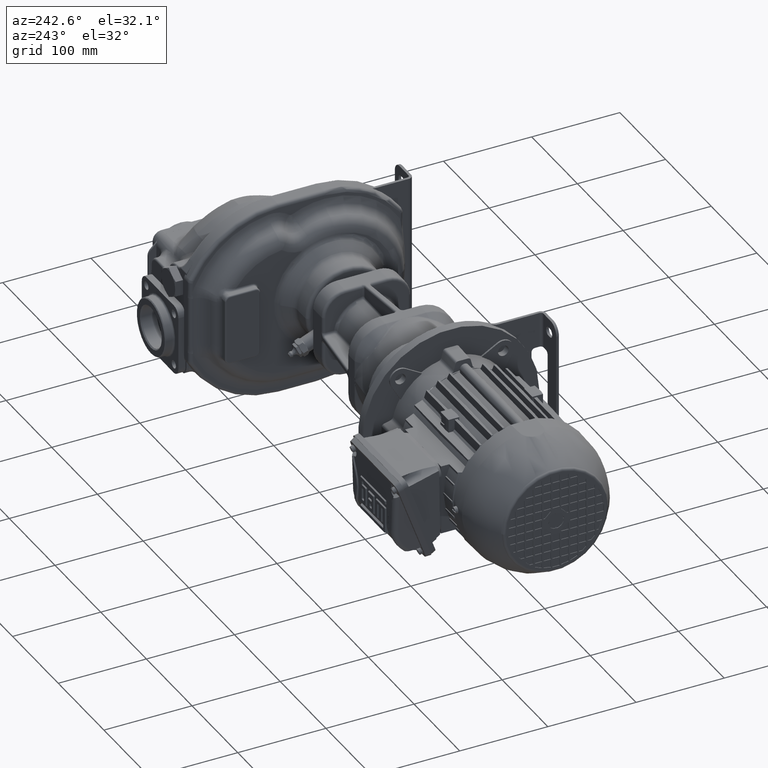
[diagram: clean part render]
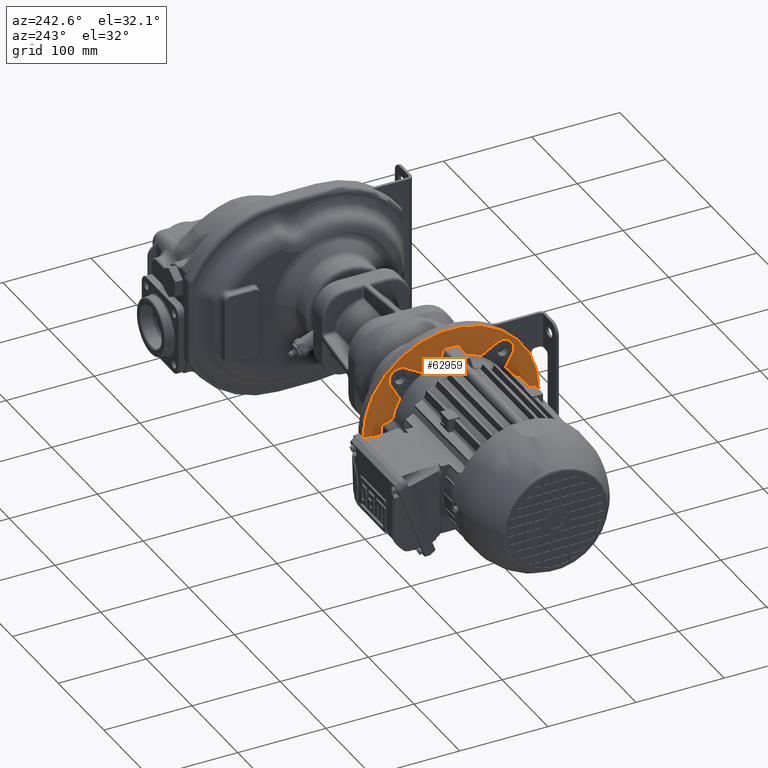
[diagram: same view with one face highlighted and labeled with its STEP entity id]
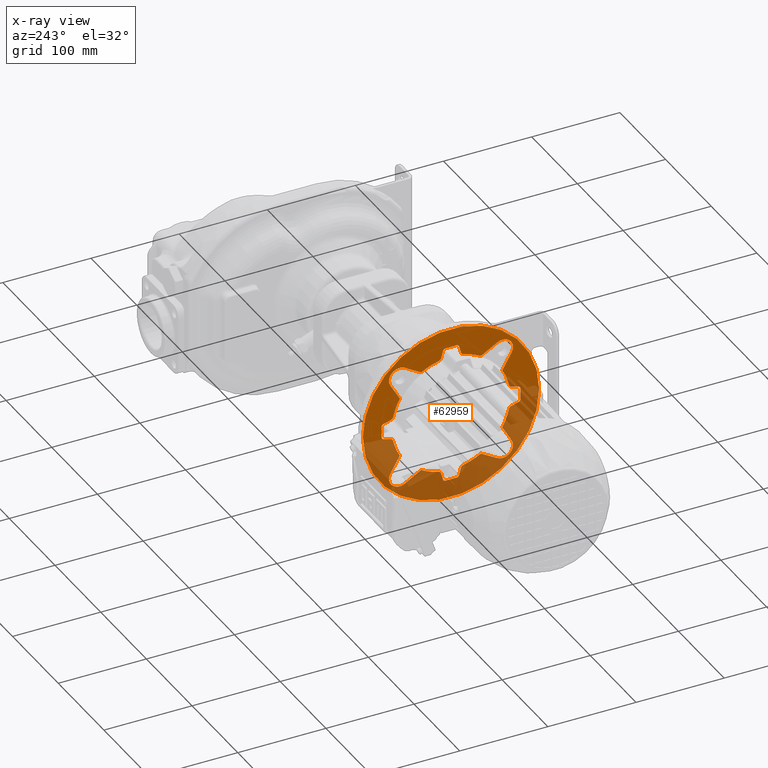
[diagram: x-ray of the same camera — body ghosted, the highlighted face saturated]
A machine part, auxiliary view. The second image highlights one B-rep face of the part: STEP entity #62959.
The next image is the same camera in x-ray: the body ghosted, the highlighted face saturated — about 51% of this face is hidden behind the body in this view.
In plain terms, the highlighted planar face has unit normal (1, 0, 0).
Its self-contained STEP definition (entity closure, byte-faithful):
#13460=CARTESIAN_POINT('',(-3.143E2,1.1E2,0.E0));
#13461=DIRECTION('',(-1.E0,0.E0,0.E0));
#13462=DIRECTION('',(0.E0,1.E0,0.E0));
#13463=AXIS2_PLACEMENT_3D('',#13460,#13461,#13462);
#13465=CARTESIAN_POINT('',(-3.143E2,1.1E2,0.E0));
#13466=DIRECTION('',(-1.E0,0.E0,0.E0));
#13467=DIRECTION('',(0.E0,-1.E0,0.E0));
#13468=AXIS2_PLACEMENT_3D('',#13465,#13466,#13467);
#13470=DIRECTION('',(-4.968751014214E-7,2.588375251491E-1,9.659208743859E-1));
#13471=VECTOR('',#13470,8.172830979736E0);
#13472=CARTESIAN_POINT('',(-3.143E2,1.191280612050E2,-7.647114600950E1));
#13473=LINE('',#13472,#13471);
#13474=DIRECTION('',(0.E0,1.E0,0.E0));
#13475=VECTOR('',#13474,1.246255344412E1);
#13476=CARTESIAN_POINT('',(-3.143E2,1.037687232779E2,-7.869392692158E1));
#13477=LINE('',#13476,#13475);
#13478=DIRECTION('',(4.968392405711E-7,2.588375258119E-1,-9.659208742083E-1));
#13479=VECTOR('',#13478,8.172830979737E0);
#13480=CARTESIAN_POINT('',(-3.143000040606E2,9.875650344536E1,
-6.857683796479E1));
#13481=LINE('',#13480,#13479);
#13482=CARTESIAN_POINT('',(-3.143E2,1.1E2,0.E0));
#13483=DIRECTION('',(1.E0,0.E0,0.E0));
#13484=DIRECTION('',(0.E0,-5.039168477127E-1,-8.637521696594E-1));
#13485=AXIS2_PLACEMENT_3D('',#13482,#13483,#13484);
#13487=DIRECTION('',(-3.467432539896E-14,8.660254037844E-1,5.E-1));
#13488=VECTOR('',#13487,2.131157381400E1);
#13489=CARTESIAN_POINT('',(-3.143E2,5.766369055211E1,-6.872861429330E1));
#13490=LINE('',#13489,#13488);
#13491=DIRECTION('',(3.467432539896E-14,-5.E-1,-8.660254037844E-1));
#13492=VECTOR('',#13491,2.131157381400E1);
#13493=CARTESIAN_POINT('',(-3.143E2,5.192717261369E1,-3.387994513034E1));
#13494=LINE('',#13493,#13492);
#13495=CARTESIAN_POINT('',(-3.143E2,1.1E2,0.E0));
#13496=DIRECTION('',(1.E0,0.E0,0.E0));
#13497=DIRECTION('',(0.E0,-9.772557285621E-1,-2.120642378916E-1));
#13498=AXIS2_PLACEMENT_3D('',#13495,#13496,#13497);
#13500=DIRECTION('',(-4.968751083766E-7,9.659208743859E-1,-2.588375251491E-1));
#13501=VECTOR('',#13500,8.172830979736E0);
#13502=CARTESIAN_POINT('',(-3.143E2,3.352885399050E1,-9.128061204961E0));
#13503=LINE('',#13502,#13501);
#13504=DIRECTION('',(0.E0,0.E0,-1.E0));
#13505=VECTOR('',#13504,1.246255344412E1);
#13506=CARTESIAN_POINT('',(-3.143E2,3.130607307842E1,6.231276722062E0));
#13507=LINE('',#13506,#13505);
#13508=DIRECTION('',(4.968392405711E-7,-9.659208742083E-1,-2.588375258119E-1));
#13509=VECTOR('',#13508,8.172830979737E0);
#13510=CARTESIAN_POINT('',(-3.143000040606E2,4.142316203521E1,
1.124349655463E1));
#13511=LINE('',#13510,#13509);
#13512=CARTESIAN_POINT('',(-3.143E2,1.1E2,0.E0));
#13513=DIRECTION('',(1.E0,0.E0,0.E0));
#13514=DIRECTION('',(0.E0,-8.637521696594E-1,5.039168477127E-1));
#13515=AXIS2_PLACEMENT_3D('',#13512,#13513,#13514);
#13517=DIRECTION('',(-3.467432539896E-14,5.E-1,-8.660254037844E-1));
#13518=VECTOR('',#13517,2.131157381400E1);
#13519=CARTESIAN_POINT('',(-3.143E2,4.127138570670E1,5.233630944789E1));
#13520=LINE('',#13519,#13518);
#13521=DIRECTION('',(3.467432539896E-14,-8.660254037844E-1,5.E-1));
#13522=VECTOR('',#13521,2.131157381400E1);
#13523=CARTESIAN_POINT('',(-3.143E2,7.612005486966E1,5.807282738631E1));
#13524=LINE('',#13523,#13522);
#13525=CARTESIAN_POINT('',(-3.143E2,1.1E2,0.E0));
#13526=DIRECTION('',(1.E0,0.E0,0.E0));
#13527=DIRECTION('',(0.E0,-2.120642378916E-1,9.772557285621E-1));
#13528=AXIS2_PLACEMENT_3D('',#13525,#13526,#13527);
#13530=DIRECTION('',(-4.966929664164E-7,-2.588375285154E-1,-9.659208734839E-1));
#13531=VECTOR('',#13530,8.172830979740E0);
#13532=CARTESIAN_POINT('',(-3.143E2,1.008719387950E2,7.647114600950E1));
#13533=LINE('',#13532,#13531);
#13534=DIRECTION('',(0.E0,-1.E0,0.E0));
#13535=VECTOR('',#13534,1.246255344412E1);
#13536=CARTESIAN_POINT('',(-3.143E2,1.162312767221E2,7.869392692158E1));
#13537=LINE('',#13536,#13535);
#13538=DIRECTION('',(4.966547129881E-7,-2.588375292222E-1,9.659208732944E-1));
#13539=VECTOR('',#13538,8.172830979740E0);
#13540=CARTESIAN_POINT('',(-3.143000040591E2,1.212434965825E2,
6.857683797226E1));
#13541=LINE('',#13540,#13539);
#13542=CARTESIAN_POINT('',(-3.143E2,1.1E2,0.E0));
#13543=DIRECTION('',(1.E0,0.E0,0.E0));
#13544=DIRECTION('',(0.E0,5.039168477127E-1,8.637521696594E-1));
#13545=AXIS2_PLACEMENT_3D('',#13542,#13543,#13544);
#13547=DIRECTION('',(-3.467432539896E-14,-8.660254037844E-1,-5.E-1));
#13548=VECTOR('',#13547,2.131157381400E1);
#13549=CARTESIAN_POINT('',(-3.143E2,1.623363094479E2,6.872861429330E1));
#13550=LINE('',#13549,#13548);
#13551=CARTESIAN_POINT('',(-3.143E2,1.683363094479E2,5.833630944789E1));
#13552=DIRECTION('',(1.E0,0.E0,0.E0));
#13553=DIRECTION('',(0.E0,8.660254037844E-1,-5.E-1));
#13554=AXIS2_PLACEMENT_3D('',#13551,#13552,#13553);
#13556=DIRECTION('',(3.467432539896E-14,5.E-1,8.660254037844E-1));
#13557=VECTOR('',#13556,2.131157381400E1);
#13558=CARTESIAN_POINT('',(-3.143E2,1.680728273863E2,3.387994513034E1));
#13559=LINE('',#13558,#13557);
#13560=CARTESIAN_POINT('',(-3.143E2,1.1E2,0.E0));
#13561=DIRECTION('',(1.E0,0.E0,0.E0));
#13562=DIRECTION('',(0.E0,9.772557285621E-1,2.120642378916E-1));
#13563=AXIS2_PLACEMENT_3D('',#13560,#13561,#13562);
#13565=DIRECTION('',(-4.966929664164E-7,-9.659208734839E-1,2.588375285154E-1));
#13566=VECTOR('',#13565,8.172830979740E0);
#13567=CARTESIAN_POINT('',(-3.143E2,1.864711460095E2,9.128061204961E0));
#13568=LINE('',#13567,#13566);
#13569=DIRECTION('',(0.E0,0.E0,1.E0));
#13570=VECTOR('',#13569,1.246255344412E1);
#13571=CARTESIAN_POINT('',(-3.143E2,1.886939269216E2,-6.231276722062E0));
#13572=LINE('',#13571,#13570);
#13573=DIRECTION('',(4.966547129881E-7,9.659208732944E-1,2.588375292222E-1));
#13574=VECTOR('',#13573,8.172830979740E0);
#13575=CARTESIAN_POINT('',(-3.143000040591E2,1.785768379723E2,
-1.124349658251E1));
#13576=LINE('',#13575,#13574);
#13577=CARTESIAN_POINT('',(-3.143E2,1.1E2,0.E0));
#13578=DIRECTION('',(1.E0,0.E0,0.E0));
#13579=DIRECTION('',(0.E0,8.637521696594E-1,-5.039168477127E-1));
#13580=AXIS2_PLACEMENT_3D('',#13577,#13578,#13579);
#13582=DIRECTION('',(-3.467432539896E-14,-5.E-1,8.660254037844E-1));
#13583=VECTOR('',#13582,2.131157381400E1);
#13584=CARTESIAN_POINT('',(-3.143E2,1.787286142933E2,-5.233630944789E1));
#13585=LINE('',#13584,#13583);
#13586=CARTESIAN_POINT('',(-3.143E2,1.683363094479E2,-5.833630944789E1));
#13587=DIRECTION('',(1.E0,0.E0,0.E0));
#13588=DIRECTION('',(0.E0,1.E0,0.E0));
#13589=AXIS2_PLACEMENT_3D('',#13586,#13587,#13588);
#13591=CARTESIAN_POINT('',(-3.143E2,1.683363094479E2,-5.833630944789E1));
#13592=DIRECTION('',(1.E0,0.E0,0.E0));
#13593=DIRECTION('',(0.E0,-5.E-1,-8.660254037845E-1));
#13594=AXIS2_PLACEMENT_3D('',#13591,#13592,#13593);
#13596=DIRECTION('',(3.467432539896E-14,8.660254037844E-1,-5.E-1));
#13597=VECTOR('',#13596,2.131157381400E1);
#13598=CARTESIAN_POINT('',(-3.143E2,1.438799451303E2,-5.807282738631E1));
#13599=LINE('',#13598,#13597);
#13600=CARTESIAN_POINT('',(-3.143E2,1.1E2,0.E0));
#13601=DIRECTION('',(1.E0,0.E0,0.E0));
#13602=DIRECTION('',(0.E0,2.120642378916E-1,-9.772557285621E-1));
#13603=AXIS2_PLACEMENT_3D('',#13600,#13601,#13602);
#13613=CARTESIAN_POINT('',(-3.143000040011E2,1.242577911691E2,
-6.570418584101E1));
#13614=CARTESIAN_POINT('',(-3.143000040011E2,1.242015078499E2,
-6.571639931983E1));
#13615=CARTESIAN_POINT('',(-3.142999981431E2,1.240892820241E2,
-6.574375287653E1));
#13616=CARTESIAN_POINT('',(-3.143000004976E2,1.239211802983E2,
-6.579166869052E1));
#13617=CARTESIAN_POINT('',(-3.142999998667E2,1.237546243807E2,
-6.584739186669E1));
#13618=CARTESIAN_POINT('',(-3.143000000357E2,1.235903868002E2,
-6.591043183165E1));
#13619=CARTESIAN_POINT('',(-3.142999999904E2,1.234291444082E2,
-6.598062317402E1));
#13620=CARTESIAN_POINT('',(-3.143000000026E2,1.232711308046E2,
-6.605783479502E1));
#13621=CARTESIAN_POINT('',(-3.142999999993E2,1.231166637884E2,
-6.614192122531E1));
#13622=CARTESIAN_POINT('',(-3.143000000002E2,1.229660577965E2,
-6.623270727982E1));
#13623=CARTESIAN_POINT('',(-3.143E2,1.228195430667E2,-6.633005670180E1));
#13624=CARTESIAN_POINT('',(-3.143E2,1.226774598436E2,-6.643375499422E1));
#13625=CARTESIAN_POINT('',(-3.143E2,1.225406086428E2,-6.654317151369E1));
#13626=CARTESIAN_POINT('',(-3.143E2,1.224097429656E2,-6.665751495755E1));
#13627=CARTESIAN_POINT('',(-3.143E2,1.222846039693E2,-6.677677388001E1));
#13628=CARTESIAN_POINT('',(-3.143E2,1.221641000977E2,-6.690198835902E1));
#13629=CARTESIAN_POINT('',(-3.143E2,1.220482276519E2,-6.703342052798E1));
#13630=CARTESIAN_POINT('',(-3.142999999999E2,1.219378159552E2,
-6.717035299305E1));
#13631=CARTESIAN_POINT('',(-3.143000000002E2,1.218335329956E2,
-6.731201675846E1));
#13632=CARTESIAN_POINT('',(-3.142999999993E2,1.217356091349E2,
-6.745808257884E1));
#13633=CARTESIAN_POINT('',(-3.143000000026E2,1.216441913234E2,
-6.760832736973E1));
#13634=CARTESIAN_POINT('',(-3.142999999903E2,1.215594698745E2,
-6.776244521181E1));
#13635=CARTESIAN_POINT('',(-3.143000000363E2,1.214816052040E2,
-6.792012576769E1));
#13636=CARTESIAN_POINT('',(-3.142999998647E2,1.214107398588E2,
-6.808114208647E1));
#13637=CARTESIAN_POINT('',(-3.143000005050E2,1.213470706139E2,
-6.824482499596E1));
#13638=CARTESIAN_POINT('',(-3.142999981153E2,1.212911289353E2,
-6.841042850268E1));
#13639=CARTESIAN_POINT('',(-3.143000040609E2,1.212584026728E2,
-6.852120707408E1));
#13640=CARTESIAN_POINT('',(-3.143000040609E2,1.212434965492E2,
-6.857683796334E1));
#13703=CARTESIAN_POINT('',(-3.143000040011E2,1.242577911691E2,
-6.570418584101E1));
#13717=CARTESIAN_POINT('',(-3.143E2,1.680728273863E2,-3.387994513034E1));
#13765=CARTESIAN_POINT('',(-3.143000039996E2,1.757041858692E2,
1.425779117527E1));
#13777=CARTESIAN_POINT('',(-3.143E2,1.680728273863E2,3.387994513034E1));
#13779=CARTESIAN_POINT('',(-3.143E2,1.438799451303E2,5.807282738631E1));
#13791=CARTESIAN_POINT('',(-3.143000040238E2,1.242577911739E2,
6.570418586274E1));
#13793=CARTESIAN_POINT('',(-3.143000039996E2,9.574220882473E1,
6.570418586921E1));
#13805=CARTESIAN_POINT('',(-3.143E2,7.612005486966E1,5.807282738631E1));
#13807=CARTESIAN_POINT('',(-3.143E2,5.192717261369E1,3.387994513034E1));
#13819=CARTESIAN_POINT('',(-3.143000040238E2,4.429581416506E1,
1.425779116787E1));
#13851=CARTESIAN_POINT('',(-3.143E2,1.864711460095E2,9.128061204961E0));
#13852=CARTESIAN_POINT('',(-3.143E2,1.866563777522E2,9.078428509099E0));
#13853=CARTESIAN_POINT('',(-3.143E2,1.869910353237E2,8.951688273339E0));
#13854=CARTESIAN_POINT('',(-3.143E2,1.875577344115E2,8.619467733336E0));
#13855=CARTESIAN_POINT('',(-3.143E2,1.881098819473E2,8.084315383676E0));
#13856=CARTESIAN_POINT('',(-3.143E2,1.884838931249E2,7.412474198795E0));
#13857=CARTESIAN_POINT('',(-3.143E2,1.886581210077E2,6.779099911165E0));
#13858=CARTESIAN_POINT('',(-3.143E2,1.886939269216E2,6.423042733109E0));
#13859=CARTESIAN_POINT('',(-3.143E2,1.886939269216E2,6.231276722063E0));
#13879=CARTESIAN_POINT('',(-3.143000039996E2,1.757041858692E2,
1.425779117527E1));
#13880=CARTESIAN_POINT('',(-3.143000039996E2,1.757163991893E2,
1.420150858757E1));
#13881=CARTESIAN_POINT('',(-3.142999981438E2,1.757437524016E2,
1.408928383393E1));
#13882=CARTESIAN_POINT('',(-3.143000004974E2,1.757916680390E2,
1.392118240483E1));
#13883=CARTESIAN_POINT('',(-3.142999998667E2,1.758473912290E2,
1.375462613622E1));
#13884=CARTESIAN_POINT('',(-3.143000000357E2,1.759104312506E2,
1.359038821305E1));
#13885=CARTESIAN_POINT('',(-3.142999999904E2,1.759806225726E2,
1.342914570586E1));
#13886=CARTESIAN_POINT('',(-3.143000000026E2,1.760578342359E2,
1.327113188089E1));
#13887=CARTESIAN_POINT('',(-3.142999999993E2,1.761419207080E2,
1.311666468579E1));
#13888=CARTESIAN_POINT('',(-3.143000000002E2,1.762327068230E2,
1.296605851273E1));
#13889=CARTESIAN_POINT('',(-3.143E2,1.763300563200E2,1.281954361004E1));
#13890=CARTESIAN_POINT('',(-3.143E2,1.764337547017E2,1.267746022198E1));
#13891=CARTESIAN_POINT('',(-3.143E2,1.765431713253E2,1.254060886394E1));
#13892=CARTESIAN_POINT('',(-3.143E2,1.766575148841E2,1.240974304218E1));
#13893=CARTESIAN_POINT('',(-3.143E2,1.767767739316E2,1.228460391376E1));
#13894=CARTESIAN_POINT('',(-3.143E2,1.769019885484E2,1.216409991963E1));
#13895=CARTESIAN_POINT('',(-3.143E2,1.770334208684E2,1.204822736124E1));
#13896=CARTESIAN_POINT('',(-3.142999999999E2,1.771703534930E2,
1.193781556648E1));
#13897=CARTESIAN_POINT('',(-3.143000000002E2,1.773120174267E2,
1.183353252259E1));
#13898=CARTESIAN_POINT('',(-3.142999999993E2,1.774580834244E2,
1.173560859163E1));
#13899=CARTESIAN_POINT('',(-3.143000000026E2,1.776083283914E2,
1.164419072849E1));
#13900=CARTESIAN_POINT('',(-3.142999999903E2,1.777624464515E2,
1.155946922582E1));
#13901=CARTESIAN_POINT('',(-3.143000000362E2,1.779201271237E2,
1.148160456829E1));
#13902=CARTESIAN_POINT('',(-3.142999998647E2,1.780811437803E2,
1.141073914949E1));
#13903=CARTESIAN_POINT('',(-3.143000005048E2,1.782448270368E2,
1.134706987338E1));
#13904=CARTESIAN_POINT('',(-3.142999981160E2,1.784104302614E2,
1.129112838216E1));
#13905=CARTESIAN_POINT('',(-3.143000040594E2,1.785212077941E2,
1.125840250937E1));
#13906=CARTESIAN_POINT('',(-3.143000040594E2,1.785768379707E2,
1.124349657673E1));
#13937=CARTESIAN_POINT('',(-3.143E2,1.886939269216E2,-6.231276722061E0));
#13938=CARTESIAN_POINT('',(-3.143E2,1.886939269216E2,-6.423042733107E0));
#13939=CARTESIAN_POINT('',(-3.143E2,1.886581210077E2,-6.779099911164E0));
#13940=CARTESIAN_POINT('',(-3.143E2,1.884838931249E2,-7.412474198795E0));
#13941=CARTESIAN_POINT('',(-3.143E2,1.881098819473E2,-8.084315383676E0));
#13942=CARTESIAN_POINT('',(-3.143E2,1.875577344115E2,-8.619467733336E0));
#13943=CARTESIAN_POINT('',(-3.143E2,1.869910353237E2,-8.951688273339E0));
#13944=CARTESIAN_POINT('',(-3.143E2,1.866563777522E2,-9.078428509099E0));
#13945=CARTESIAN_POINT('',(-3.143E2,1.864711460095E2,-9.128061204961E0));
#13994=CARTESIAN_POINT('',(-3.143000040591E2,1.785768379723E2,
-1.124349658251E1));
#13995=CARTESIAN_POINT('',(-3.143000040591E2,1.785212079285E2,
-1.125840247953E1));
#13996=CARTESIAN_POINT('',(-3.142999981162E2,1.784104305984E2,
-1.129112827850E1));
#13997=CARTESIAN_POINT('',(-3.143000005048E2,1.782448276181E2,
-1.134706966277E1));
#13998=CARTESIAN_POINT('',(-3.142999998647E2,1.780811442037E2,
-1.141073897344E1));
#13999=CARTESIAN_POINT('',(-3.143000000362E2,1.779201276705E2,
-1.148160431435E1));
#14000=CARTESIAN_POINT('',(-3.142999999903E2,1.777624469057E2,
-1.155946898723E1));
#14001=CARTESIAN_POINT('',(-3.143000000026E2,1.776083288422E2,
-1.164419046925E1));
#14002=CARTESIAN_POINT('',(-3.142999999993E2,1.774580839243E2,
-1.173560827145E1));
#14003=CARTESIAN_POINT('',(-3.143000000002E2,1.773120178069E2,
-1.183353225387E1));
#14004=CARTESIAN_POINT('',(-3.142999999999E2,1.771703538905E2,
-1.193781526224E1));
#14005=CARTESIAN_POINT('',(-3.143E2,1.770334217518E2,-1.204822664790E1));
#14006=CARTESIAN_POINT('',(-3.143E2,1.769019906312E2,-1.216409800628E1));
#14007=CARTESIAN_POINT('',(-3.143E2,1.767767750424E2,-1.228460277039E1));
#14008=CARTESIAN_POINT('',(-3.143E2,1.766575159728E2,-1.240974187764E1));
#14009=CARTESIAN_POINT('',(-3.143E2,1.765431731366E2,-1.254060669116E1));
#14010=CARTESIAN_POINT('',(-3.143E2,1.764337553721E2,-1.267745930477E1));
#14011=CARTESIAN_POINT('',(-3.143E2,1.763300566055E2,-1.281954319732E1));
#14012=CARTESIAN_POINT('',(-3.143000000002E2,1.762327070739E2,
-1.296605811896E1));
#14013=CARTESIAN_POINT('',(-3.142999999993E2,1.761419210046E2,
-1.311666416963E1));
#14014=CARTESIAN_POINT('',(-3.143000000026E2,1.760578344739E2,
-1.327113141671E1));
#14015=CARTESIAN_POINT('',(-3.142999999904E2,1.759806227901E2,
-1.342914523851E1));
#14016=CARTESIAN_POINT('',(-3.143000000359E2,1.759104314788E2,
-1.359038765244E1));
#14017=CARTESIAN_POINT('',(-3.142999998659E2,1.758473913846E2,
-1.375462570430E1));
#14018=CARTESIAN_POINT('',(-3.143000005004E2,1.757916682213E2,
-1.392118181421E1));
#14019=CARTESIAN_POINT('',(-3.142999981325E2,1.757437524894E2,
-1.408928349195E1));
#14020=CARTESIAN_POINT('',(-3.143000040238E2,1.757163992120E2,
-1.420150845158E1));
#14021=CARTESIAN_POINT('',(-3.143000040238E2,1.757041858627E2,
-1.425779117390E1));
#14106=CARTESIAN_POINT('',(-3.143000040591E2,1.212434965825E2,
6.857683797226E1));
#14107=CARTESIAN_POINT('',(-3.143000040591E2,1.212584024795E2,
6.852120792855E1));
#14108=CARTESIAN_POINT('',(-3.142999981162E2,1.212911282785E2,
6.841043059841E1));
#14109=CARTESIAN_POINT('',(-3.143000005048E2,1.213470696628E2,
6.824482761806E1));
#14110=CARTESIAN_POINT('',(-3.142999998647E2,1.214107389734E2,
6.808114420371E1));
#14111=CARTESIAN_POINT('',(-3.143000000362E2,1.214816043143E2,
6.792012767053E1));
#14112=CARTESIAN_POINT('',(-3.142999999903E2,1.215594689872E2,
6.776244690573E1));
#14113=CARTESIAN_POINT('',(-3.143000000026E2,1.216441904693E2,
6.760832884219E1));
#14114=CARTESIAN_POINT('',(-3.142999999993E2,1.217356082715E2,
6.745808392426E1));
#14115=CARTESIAN_POINT('',(-3.143000000002E2,1.218335322539E2,
6.731201780688E1));
#14116=CARTESIAN_POINT('',(-3.142999999999E2,1.219378152622E2,
6.717035389051E1));
#14117=CARTESIAN_POINT('',(-3.143E2,1.220482266479E2,6.703342175181E1));
#14118=CARTESIAN_POINT('',(-3.143E2,1.221640980063E2,6.690199063118E1));
#14119=CARTESIAN_POINT('',(-3.143E2,1.222846027704E2,6.677677504243E1));
#14120=CARTESIAN_POINT('',(-3.143E2,1.224097418776E2,6.665751597278E1));
#14121=CARTESIAN_POINT('',(-3.143E2,1.225406066912E2,6.654317313661E1));
#14122=CARTESIAN_POINT('',(-3.143E2,1.226774593048E2,6.643375537208E1));
#14123=CARTESIAN_POINT('',(-3.143E2,1.228195431973E2,6.633005660555E1));
#14124=CARTESIAN_POINT('',(-3.143000000002E2,1.229660581190E2,
6.623270707389E1));
#14125=CARTESIAN_POINT('',(-3.142999999993E2,1.231166641696E2,
6.614192100465E1));
#14126=CARTESIAN_POINT('',(-3.143000000026E2,1.232711314167E2,
6.605783447386E1));
#14127=CARTESIAN_POINT('',(-3.142999999904E2,1.234291452385E2,
6.598062279015E1));
#14128=CARTESIAN_POINT('',(-3.143000000359E2,1.235903876524E2,
6.591043147880E1));
#14129=CARTESIAN_POINT('',(-3.142999998659E2,1.237546257043E2,
6.584739138465E1));
#14130=CARTESIAN_POINT('',(-3.143000005004E2,1.239211818142E2,
6.579166822131E1));
#14131=CARTESIAN_POINT('',(-3.142999981325E2,1.240892834919E2,
6.574375248936E1));
#14132=CARTESIAN_POINT('',(-3.143000040238E2,1.242015084516E2,
6.571639921200E1));
#14133=CARTESIAN_POINT('',(-3.143000040238E2,1.242577911739E2,
6.570418586274E1));
#14160=CARTESIAN_POINT('',(-3.143E2,1.008719387950E2,7.647114600950E1));
#14161=CARTESIAN_POINT('',(-3.143E2,1.009215714909E2,7.665637775217E1));
#14162=CARTESIAN_POINT('',(-3.143E2,1.010483117267E2,7.699103532366E1));
#14163=CARTESIAN_POINT('',(-3.143E2,1.013805322667E2,7.755773441152E1));
#14164=CARTESIAN_POINT('',(-3.143E2,1.019156846163E2,7.810988194733E1));
#14165=CARTESIAN_POINT('',(-3.143E2,1.025875258012E2,7.848389312489E1));
#14166=CARTESIAN_POINT('',(-3.143E2,1.032209000888E2,7.865812100772E1));
#14167=CARTESIAN_POINT('',(-3.143E2,1.035769572669E2,7.869392692158E1));
#14168=CARTESIAN_POINT('',(-3.143E2,1.037687232779E2,7.869392692158E1));
#14188=CARTESIAN_POINT('',(-3.143000039996E2,9.574220882473E1,
6.570418586921E1));
#14189=CARTESIAN_POINT('',(-3.143000039996E2,9.579849141243E1,
6.571639918927E1));
#14190=CARTESIAN_POINT('',(-3.142999981438E2,9.591071616606E1,
6.574375240162E1));
#14191=CARTESIAN_POINT('',(-3.143000004974E2,9.607881759517E1,
6.579166803901E1));
#14192=CARTESIAN_POINT('',(-3.142999998667E2,9.624537386378E1,
6.584739122896E1));
#14193=CARTESIAN_POINT('',(-3.143000000357E2,9.640961178695E1,
6.591043125057E1));
#14194=CARTESIAN_POINT('',(-3.142999999904E2,9.657085429414E1,
6.598062257265E1));
#14195=CARTESIAN_POINT('',(-3.143000000026E2,9.672886811911E1,
6.605783423587E1));
#14196=CARTESIAN_POINT('',(-3.142999999993E2,9.688333531421E1,
6.614192070804E1));
#14197=CARTESIAN_POINT('',(-3.143000000002E2,9.703394148727E1,
6.623270682304E1));
#14198=CARTESIAN_POINT('',(-3.143E2,9.718045638996E1,6.633005632004E1));
#14199=CARTESIAN_POINT('',(-3.143E2,9.732253977802E1,6.643375470165E1));
#14200=CARTESIAN_POINT('',(-3.143E2,9.745939113606E1,6.654317132533E1));
#14201=CARTESIAN_POINT('',(-3.143E2,9.759025695782E1,6.665751488413E1));
#14202=CARTESIAN_POINT('',(-3.143E2,9.771539608624E1,6.677677393161E1));
#14203=CARTESIAN_POINT('',(-3.143E2,9.783590008037E1,6.690198854838E1));
#14204=CARTESIAN_POINT('',(-3.143E2,9.795177263876E1,6.703342086838E1));
#14205=CARTESIAN_POINT('',(-3.142999999999E2,9.806218443352E1,
6.717035349302E1));
#14206=CARTESIAN_POINT('',(-3.143000000002E2,9.816646747741E1,
6.731201742671E1));
#14207=CARTESIAN_POINT('',(-3.142999999993E2,9.826439140837E1,
6.745808342439E1));
#14208=CARTESIAN_POINT('',(-3.143000000026E2,9.835580927151E1,
6.760832839138E1));
#14209=CARTESIAN_POINT('',(-3.142999999903E2,9.844053077417E1,
6.776244645152E1));
#14210=CARTESIAN_POINT('',(-3.143000000362E2,9.851839543170E1,
6.792012712372E1));
#14211=CARTESIAN_POINT('',(-3.142999998647E2,9.858926085051E1,
6.808114378032E1));
#14212=CARTESIAN_POINT('',(-3.143000005048E2,9.865293012662E1,
6.824482703679E1));
#14213=CARTESIAN_POINT('',(-3.142999981160E2,9.870887161784E1,
6.841043026136E1));
#14214=CARTESIAN_POINT('',(-3.143000040594E2,9.874159749063E1,
6.852120779409E1));
#14215=CARTESIAN_POINT('',(-3.143000040594E2,9.875650342327E1,
6.857683797071E1));
#14246=CARTESIAN_POINT('',(-3.143E2,1.162312767221E2,7.869392692158E1));
#14247=CARTESIAN_POINT('',(-3.143E2,1.164230427331E2,7.869392692158E1));
#14248=CARTESIAN_POINT('',(-3.143E2,1.167790999112E2,7.865812100772E1));
#14249=CARTESIAN_POINT('',(-3.143E2,1.174124741988E2,7.848389312489E1));
#14250=CARTESIAN_POINT('',(-3.143E2,1.180843153837E2,7.810988194733E1));
#14251=CARTESIAN_POINT('',(-3.143E2,1.186194677333E2,7.755773441152E1));
#14252=CARTESIAN_POINT('',(-3.143E2,1.189516882733E2,7.699103532366E1));
#14253=CARTESIAN_POINT('',(-3.143E2,1.190784285091E2,7.665637775217E1));
#14254=CARTESIAN_POINT('',(-3.143E2,1.191280612050E2,7.647114600950E1));
#14283=CARTESIAN_POINT('',(-3.143E2,5.166369055211E1,5.833630944789E1));
#14284=DIRECTION('',(1.E0,0.E0,0.E0));
#14285=DIRECTION('',(0.E0,4.999999999999E-1,8.660254037845E-1));
#14286=AXIS2_PLACEMENT_3D('',#14283,#14284,#14285);
#14362=CARTESIAN_POINT('',(-3.143000040606E2,4.142316203521E1,
1.124349655463E1));
#14363=CARTESIAN_POINT('',(-3.143000040606E2,4.147879280204E1,
1.125840264542E1));
#14364=CARTESIAN_POINT('',(-3.142999981155E2,4.158957118649E1,
1.129112883989E1));
#14365=CARTESIAN_POINT('',(-3.143000005050E2,4.175517445471E1,
1.134707041483E1));
#14366=CARTESIAN_POINT('',(-3.142999998647E2,4.191885751916E1,
1.141073969486E1));
#14367=CARTESIAN_POINT('',(-3.143000000363E2,4.207987371274E1,
1.148160496272E1));
#14368=CARTESIAN_POINT('',(-3.142999999903E2,4.223755436155E1,
1.155946965032E1));
#14369=CARTESIAN_POINT('',(-3.143000000026E2,4.239167220595E1,
1.164419107953E1));
#14370=CARTESIAN_POINT('',(-3.142999999993E2,4.254191694724E1,
1.173560883130E1));
#14371=CARTESIAN_POINT('',(-3.143000000002E2,4.268798288653E1,
1.183353274458E1));
#14372=CARTESIAN_POINT('',(-3.142999999999E2,4.282964663382E1,
1.193781566971E1));
#14373=CARTESIAN_POINT('',(-3.143E2,4.296657861209E1,1.204822695834E1));
#14374=CARTESIAN_POINT('',(-3.143E2,4.309800958064E1,1.216409820509E1));
#14375=CARTESIAN_POINT('',(-3.143E2,4.322322503053E1,1.228460284744E1));
#14376=CARTESIAN_POINT('',(-3.143E2,4.334248397422E1,1.240974182347E1));
#14377=CARTESIAN_POINT('',(-3.143E2,4.345682669462E1,1.254060649350E1));
#14378=CARTESIAN_POINT('',(-3.143E2,4.356624435404E1,1.267745895084E1));
#14379=CARTESIAN_POINT('',(-3.143E2,4.366994303029E1,1.281954267929E1));
#14380=CARTESIAN_POINT('',(-3.143000000002E2,4.376729248580E1,
1.296605742878E1));
#14381=CARTESIAN_POINT('',(-3.142999999993E2,4.385807849341E1,
1.311666329900E1));
#14382=CARTESIAN_POINT('',(-3.143000000026E2,4.394216498104E1,
1.327113036768E1));
#14383=CARTESIAN_POINT('',(-3.142999999904E2,4.401937662154E1,
1.342914396913E1));
#14384=CARTESIAN_POINT('',(-3.143000000359E2,4.408956795151E1,
1.359038626748E1));
#14385=CARTESIAN_POINT('',(-3.142999998659E2,4.415260798830E1,
1.375462397831E1));
#14386=CARTESIAN_POINT('',(-3.143000005004E2,4.420833113719E1,
1.392117974011E1));
#14387=CARTESIAN_POINT('',(-3.142999981325E2,4.425624704269E1,
1.408928170869E1));
#14388=CARTESIAN_POINT('',(-3.143000040238E2,4.428360065934E1,
1.420150772455E1));
#14389=CARTESIAN_POINT('',(-3.143000040238E2,4.429581416506E1,
1.425779116787E1));
#14421=CARTESIAN_POINT('',(-3.143E2,3.352885399050E1,-9.128061204961E0));
#14422=CARTESIAN_POINT('',(-3.143E2,3.334362224783E1,-9.078428509099E0));
#14423=CARTESIAN_POINT('',(-3.143E2,3.300896467634E1,-8.951688273339E0));
#14424=CARTESIAN_POINT('',(-3.143E2,3.244226558848E1,-8.619467733336E0));
#14425=CARTESIAN_POINT('',(-3.143E2,3.189011805267E1,-8.084315383676E0));
#14426=CARTESIAN_POINT('',(-3.143E2,3.151610687511E1,-7.412474198795E0));
#14427=CARTESIAN_POINT('',(-3.143E2,3.134187899228E1,-6.779099911164E0));
#14428=CARTESIAN_POINT('',(-3.143E2,3.130607307842E1,-6.423042733107E0));
#14429=CARTESIAN_POINT('',(-3.143E2,3.130607307842E1,-6.231276722061E0));
#14449=CARTESIAN_POINT('',(-3.143000040011E2,4.429581415899E1,
-1.425779116915E1));
#14450=CARTESIAN_POINT('',(-3.143000040011E2,4.428360068017E1,
-1.420150784985E1));
#14451=CARTESIAN_POINT('',(-3.142999981431E2,4.425624712347E1,
-1.408928202410E1));
#14452=CARTESIAN_POINT('',(-3.143000004976E2,4.420833130948E1,
-1.392118029828E1));
#14453=CARTESIAN_POINT('',(-3.142999998667E2,4.415260813331E1,
-1.375462438066E1));
#14454=CARTESIAN_POINT('',(-3.143000000357E2,4.408956816835E1,
-1.359038680021E1));
#14455=CARTESIAN_POINT('',(-3.142999999904E2,4.401937682598E1,
-1.342914440817E1));
#14456=CARTESIAN_POINT('',(-3.143000000026E2,4.394216520498E1,
-1.327113080463E1));
#14457=CARTESIAN_POINT('',(-3.142999999993E2,4.385807877468E1,
-1.311666378840E1));
#14458=CARTESIAN_POINT('',(-3.143000000002E2,4.376729272018E1,
-1.296605779655E1));
#14459=CARTESIAN_POINT('',(-3.143E2,4.366994329820E1,-1.281954306674E1));
#14460=CARTESIAN_POINT('',(-3.143E2,4.356624500578E1,-1.267745984360E1));
#14461=CARTESIAN_POINT('',(-3.143E2,4.345682848631E1,-1.254060864284E1));
#14462=CARTESIAN_POINT('',(-3.143E2,4.334248504245E1,-1.240974296563E1));
#14463=CARTESIAN_POINT('',(-3.143E2,4.322322611999E1,-1.228460396934E1));
#14464=CARTESIAN_POINT('',(-3.143E2,4.309801164098E1,-1.216410009774E1));
#14465=CARTESIAN_POINT('',(-3.143E2,4.296657947202E1,-1.204822765187E1));
#14466=CARTESIAN_POINT('',(-3.142999999999E2,4.282964700695E1,
-1.193781595517E1));
#14467=CARTESIAN_POINT('',(-3.143000000002E2,4.268798324154E1,
-1.183353299563E1));
#14468=CARTESIAN_POINT('',(-3.142999999993E2,4.254191742115E1,
-1.173560913490E1));
#14469=CARTESIAN_POINT('',(-3.143000000026E2,4.239167263027E1,
-1.164419132343E1));
#14470=CARTESIAN_POINT('',(-3.142999999903E2,4.223755478819E1,
-1.155946987455E1));
#14471=CARTESIAN_POINT('',(-3.143000000363E2,4.207987423231E1,
-1.148160520396E1));
#14472=CARTESIAN_POINT('',(-3.142999998647E2,4.191885791353E1,
-1.141073985883E1));
#14473=CARTESIAN_POINT('',(-3.143000005050E2,4.175517500403E1,
-1.134707061387E1));
#14474=CARTESIAN_POINT('',(-3.142999981153E2,4.158957149732E1,
-1.129112893534E1));
#14475=CARTESIAN_POINT('',(-3.143000040609E2,4.147879292592E1,
-1.125840267280E1));
#14476=CARTESIAN_POINT('',(-3.143000040609E2,4.142316203666E1,
-1.124349654922E1));
#14507=CARTESIAN_POINT('',(-3.143E2,3.130607307842E1,6.231276722063E0));
#14508=CARTESIAN_POINT('',(-3.143E2,3.130607307842E1,6.423042733109E0));
#14509=CARTESIAN_POINT('',(-3.143E2,3.134187899228E1,6.779099911165E0));
#14510=CARTESIAN_POINT('',(-3.143E2,3.151610687511E1,7.412474198795E0));
#14511=CARTESIAN_POINT('',(-3.143E2,3.189011805267E1,8.084315383676E0));
#14512=CARTESIAN_POINT('',(-3.143E2,3.244226558848E1,8.619467733336E0));
#14513=CARTESIAN_POINT('',(-3.143E2,3.300896467634E1,8.951688273339E0));
#14514=CARTESIAN_POINT('',(-3.143E2,3.334362224783E1,9.078428509099E0));
#14515=CARTESIAN_POINT('',(-3.143E2,3.352885399050E1,9.128061204961E0));
#30925=CARTESIAN_POINT('',(-3.143E2,5.166369055211E1,-5.833630944789E1));
#30926=DIRECTION('',(1.E0,0.E0,0.E0));
#30927=DIRECTION('',(0.E0,-8.660254037844E-1,5.E-1));
#30928=AXIS2_PLACEMENT_3D('',#30925,#30926,#30927);
#31004=CARTESIAN_POINT('',(-3.143000040606E2,9.875650344536E1,
-6.857683796479E1));
#31005=CARTESIAN_POINT('',(-3.143000040606E2,9.874159735458E1,
-6.852120719796E1));
#31006=CARTESIAN_POINT('',(-3.142999981155E2,9.870887116011E1,
-6.841042881351E1));
#31007=CARTESIAN_POINT('',(-3.143000005050E2,9.865292958517E1,
-6.824482554529E1));
#31008=CARTESIAN_POINT('',(-3.142999998647E2,9.858926030514E1,
-6.808114248084E1));
#31009=CARTESIAN_POINT('',(-3.143000000363E2,9.851839503728E1,
-6.792012628726E1));
#31010=CARTESIAN_POINT('',(-3.142999999903E2,9.844053034967E1,
-6.776244563845E1));
#31011=CARTESIAN_POINT('',(-3.143000000026E2,9.835580892047E1,
-6.760832779405E1));
#31012=CARTESIAN_POINT('',(-3.142999999993E2,9.826439116869E1,
-6.745808305276E1));
#31013=CARTESIAN_POINT('',(-3.143000000002E2,9.816646725542E1,
-6.731201711346E1));
#31014=CARTESIAN_POINT('',(-3.142999999999E2,9.806218433029E1,
-6.717035336617E1));
#31015=CARTESIAN_POINT('',(-3.143E2,9.795177304165E1,-6.703342138791E1));
#31016=CARTESIAN_POINT('',(-3.143E2,9.783590179491E1,-6.690199041936E1));
#31017=CARTESIAN_POINT('',(-3.143E2,9.771539715256E1,-6.677677496947E1));
#31018=CARTESIAN_POINT('',(-3.143E2,9.759025817653E1,-6.665751602578E1));
#31019=CARTESIAN_POINT('',(-3.143E2,9.745939350650E1,-6.654317330538E1));
#31020=CARTESIAN_POINT('',(-3.143E2,9.732254104916E1,-6.643375564596E1));
#31021=CARTESIAN_POINT('',(-3.143E2,9.718045732071E1,-6.633005696971E1));
#31022=CARTESIAN_POINT('',(-3.143000000002E2,9.703394257122E1,
-6.623270751420E1));
#31023=CARTESIAN_POINT('',(-3.142999999993E2,9.688333670100E1,
-6.614192150659E1));
#31024=CARTESIAN_POINT('',(-3.143000000026E2,9.672886963231E1,
-6.605783501896E1));
#31025=CARTESIAN_POINT('',(-3.142999999904E2,9.657085603086E1,
-6.598062337846E1));
#31026=CARTESIAN_POINT('',(-3.143000000359E2,9.640961373252E1,
-6.591043204849E1));
#31027=CARTESIAN_POINT('',(-3.142999998659E2,9.624537602168E1,
-6.584739201170E1));
#31028=CARTESIAN_POINT('',(-3.143000005004E2,9.607882025989E1,
-6.579166886280E1));
#31029=CARTESIAN_POINT('',(-3.142999981325E2,9.591071829130E1,
-6.574375295731E1));
#31030=CARTESIAN_POINT('',(-3.143000040238E2,9.579849227544E1,
-6.571639934066E1));
#31031=CARTESIAN_POINT('',(-3.143000040238E2,9.574220883213E1,
-6.570418583494E1));
#31058=CARTESIAN_POINT('',(-3.143E2,1.191280612050E2,-7.647114600950E1));
#31059=CARTESIAN_POINT('',(-3.143E2,1.190784285091E2,-7.665637775217E1));
#31060=CARTESIAN_POINT('',(-3.143E2,1.189516882733E2,-7.699103532366E1));
#31061=CARTESIAN_POINT('',(-3.143E2,1.186194677333E2,-7.755773441152E1));
#31062=CARTESIAN_POINT('',(-3.143E2,1.180843153837E2,-7.810988194733E1));
#31063=CARTESIAN_POINT('',(-3.143E2,1.174124741988E2,-7.848389312489E1));
#31064=CARTESIAN_POINT('',(-3.143E2,1.167790999112E2,-7.865812100772E1));
#31065=CARTESIAN_POINT('',(-3.143E2,1.164230427331E2,-7.869392692158E1));
#31066=CARTESIAN_POINT('',(-3.143E2,1.162312767221E2,-7.869392692158E1));
#31078=CARTESIAN_POINT('',(-3.143E2,1.037687232779E2,-7.869392692158E1));
#31079=CARTESIAN_POINT('',(-3.143E2,1.035769572669E2,-7.869392692158E1));
#31080=CARTESIAN_POINT('',(-3.143E2,1.032209000888E2,-7.865812100772E1));
#31081=CARTESIAN_POINT('',(-3.143E2,1.025875258012E2,-7.848389312489E1));
#31082=CARTESIAN_POINT('',(-3.143E2,1.019156846163E2,-7.810988194733E1));
#31083=CARTESIAN_POINT('',(-3.143E2,1.013805322667E2,-7.755773441152E1));
#31084=CARTESIAN_POINT('',(-3.143E2,1.010483117267E2,-7.699103532366E1));
#31085=CARTESIAN_POINT('',(-3.143E2,1.009215714909E2,-7.665637775217E1));
#31086=CARTESIAN_POINT('',(-3.143E2,1.008719387950E2,-7.647114600950E1));
#41051=CARTESIAN_POINT('',(-3.143E2,1.623363094479E2,6.872861429330E1));
#41053=VERTEX_POINT('',#41051);
#41070=CARTESIAN_POINT('',(-3.143E2,1.623363094479E2,-6.872861429330E1));
#41071=VERTEX_POINT('',#41070);
#41078=CARTESIAN_POINT('',(-3.143E2,1.787286142933E2,-5.233630944789E1));
#41079=VERTEX_POINT('',#41078);
#41080=VERTEX_POINT('',#31004);
#41081=VERTEX_POINT('',#31031);
#41082=VERTEX_POINT('',#31058);
#41083=VERTEX_POINT('',#31066);
#41084=CARTESIAN_POINT('',(-3.143E2,1.037687232779E2,-7.869392692158E1));
#41085=VERTEX_POINT('',#41084);
#41086=VERTEX_POINT('',#31086);
#41088=VERTEX_POINT('',#13819);
#41095=VERTEX_POINT('',#13793);
#41097=VERTEX_POINT('',#13805);
#41100=VERTEX_POINT('',#13807);
#41102=VERTEX_POINT('',#13777);
#41103=VERTEX_POINT('',#13779);
#41104=VERTEX_POINT('',#13791);
#41109=VERTEX_POINT('',#13765);
#41121=CARTESIAN_POINT('',(-3.143000040609E2,1.212434965492E2,
-6.857683796334E1));
#41122=VERTEX_POINT('',#41121);
#41127=CARTESIAN_POINT('',(-3.143E2,3.352885399050E1,-9.128061204961E0));
#41129=VERTEX_POINT('',#41127);
#41136=CARTESIAN_POINT('',(-3.143000040594E2,1.785768379707E2,
1.124349657673E1));
#41137=VERTEX_POINT('',#41136);
#41138=CARTESIAN_POINT('',(-3.143E2,1.864711460095E2,9.128061204961E0));
#41140=VERTEX_POINT('',#41138);
#41142=CARTESIAN_POINT('',(-3.143000040591E2,1.785768379723E2,
-1.124349658251E1));
#41143=VERTEX_POINT('',#41142);
#41144=CARTESIAN_POINT('',(-3.143E2,1.864711460095E2,-9.128061204961E0));
#41145=VERTEX_POINT('',#41144);
#41152=CARTESIAN_POINT('',(-3.143E2,3.352885399050E1,9.128061204961E0));
#41154=VERTEX_POINT('',#41152);
#41156=CARTESIAN_POINT('',(-3.143000040594E2,9.875650342327E1,
6.857683797071E1));
#41158=VERTEX_POINT('',#41156);
#41159=CARTESIAN_POINT('',(-3.143E2,1.008719387950E2,7.647114600950E1));
#41161=VERTEX_POINT('',#41159);
#41165=CARTESIAN_POINT('',(-3.143E2,1.037687232779E2,7.869392692158E1));
#41166=VERTEX_POINT('',#41165);
#41167=CARTESIAN_POINT('',(-3.143E2,1.162312767221E2,7.869392692158E1));
#41168=VERTEX_POINT('',#41167);
#41169=CARTESIAN_POINT('',(-3.143000040591E2,1.212434965825E2,
6.857683797226E1));
#41170=VERTEX_POINT('',#41169);
#41172=CARTESIAN_POINT('',(-3.143E2,1.886939269216E2,6.231276722062E0));
#41173=VERTEX_POINT('',#41172);
#41177=CARTESIAN_POINT('',(-3.143E2,1.886939269216E2,-6.231276722062E0));
#41178=VERTEX_POINT('',#41177);
#41179=CARTESIAN_POINT('',(-3.143E2,1.191280612050E2,7.647114600950E1));
#41180=VERTEX_POINT('',#41179);
#41184=CARTESIAN_POINT('',(-3.143000040606E2,4.142316203521E1,
1.124349655463E1));
#41185=VERTEX_POINT('',#41184);
#41186=CARTESIAN_POINT('',(-3.143000040609E2,4.142316203666E1,
-1.124349654922E1));
#41187=VERTEX_POINT('',#41186);
#41188=CARTESIAN_POINT('',(-3.143E2,3.130607307842E1,-6.231276722062E0));
#41189=VERTEX_POINT('',#41188);
#41190=CARTESIAN_POINT('',(-3.143E2,3.130607307842E1,6.231276722062E0));
#41191=VERTEX_POINT('',#41190);
#41200=CARTESIAN_POINT('',(-3.143E2,5.766369055211E1,-6.872861429330E1));
#41201=VERTEX_POINT('',#41200);
#41203=CARTESIAN_POINT('',(-3.143E2,4.127138570670E1,5.233630944789E1));
#41205=VERTEX_POINT('',#41203);
#41212=CARTESIAN_POINT('',(-3.143E2,7.612005486966E1,-5.807282738631E1));
#41213=VERTEX_POINT('',#41212);
#41214=CARTESIAN_POINT('',(-3.143E2,5.192717261369E1,-3.387994513034E1));
#41215=CARTESIAN_POINT('',(-3.143E2,4.127138570670E1,-5.233630944789E1));
#41216=VERTEX_POINT('',#41214);
#41217=VERTEX_POINT('',#41215);
#41218=VERTEX_POINT('',#14449);
#41223=CARTESIAN_POINT('',(-3.143E2,5.766369055211E1,6.872861429330E1));
#41224=VERTEX_POINT('',#41223);
#41225=CARTESIAN_POINT('',(-3.143E2,2.1E2,0.E0));
#41226=CARTESIAN_POINT('',(-3.143E2,9.999999999999E0,7.635711303516E-14));
#41227=VERTEX_POINT('',#41225);
#41228=VERTEX_POINT('',#41226);
#41231=VERTEX_POINT('',#13717);
#41232=CARTESIAN_POINT('',(-3.143E2,1.757040355215E2,-1.425775854982E1));
#41233=VERTEX_POINT('',#41232);
#41234=VERTEX_POINT('',#13703);
#41235=CARTESIAN_POINT('',(-3.143E2,1.438799451303E2,-5.807282738631E1));
#41236=VERTEX_POINT('',#41235);
#41239=CARTESIAN_POINT('',(-3.143E2,1.803363094479E2,-5.833630944789E1));
#41240=VERTEX_POINT('',#41239);
#41241=CARTESIAN_POINT('',(-3.143E2,1.787286142933E2,5.233630944789E1));
#41242=VERTEX_POINT('',#41241);
#62850=CARTESIAN_POINT('',(-3.143E2,1.1E2,-6.723320580394E1));
#62851=DIRECTION('',(1.E0,0.E0,0.E0));
#62852=DIRECTION('',(0.E0,-1.E0,0.E0));
#62853=AXIS2_PLACEMENT_3D('',#62850,#62851,#62852);
#62854=PLANE('',#62853);
#62855=ORIENTED_EDGE('',*,*,#62841,.F.);
#62856=ORIENTED_EDGE('',*,*,#62449,.F.);
#62857=EDGE_LOOP('',(#62855,#62856));
#62858=FACE_OUTER_BOUND('',#62857,.F.);
#62860=ORIENTED_EDGE('',*,*,#62859,.F.);
#62862=ORIENTED_EDGE('',*,*,#62861,.T.);
#62864=ORIENTED_EDGE('',*,*,#62863,.F.);
#62866=ORIENTED_EDGE('',*,*,#62865,.T.);
#62868=ORIENTED_EDGE('',*,*,#62867,.F.);
#62870=ORIENTED_EDGE('',*,*,#62869,.T.);
#62872=ORIENTED_EDGE('',*,*,#62871,.F.);
#62874=ORIENTED_EDGE('',*,*,#62873,.F.);
#62876=ORIENTED_EDGE('',*,*,#62875,.F.);
#62878=ORIENTED_EDGE('',*,*,#62877,.F.);
#62880=ORIENTED_EDGE('',*,*,#62879,.F.);
#62882=ORIENTED_EDGE('',*,*,#62881,.T.);
#62884=ORIENTED_EDGE('',*,*,#62883,.F.);
#62886=ORIENTED_EDGE('',*,*,#62885,.T.);
#62888=ORIENTED_EDGE('',*,*,#62887,.F.);
#62890=ORIENTED_EDGE('',*,*,#62889,.T.);
#62892=ORIENTED_EDGE('',*,*,#62891,.F.);
#62894=ORIENTED_EDGE('',*,*,#62893,.T.);
#62896=ORIENTED_EDGE('',*,*,#62895,.F.);
#62898=ORIENTED_EDGE('',*,*,#62897,.F.);
#62900=ORIENTED_EDGE('',*,*,#62899,.F.);
#62902=ORIENTED_EDGE('',*,*,#62901,.F.);
#62904=ORIENTED_EDGE('',*,*,#62903,.F.);
#62906=ORIENTED_EDGE('',*,*,#62905,.T.);
#62908=ORIENTED_EDGE('',*,*,#62907,.F.);
#62910=ORIENTED_EDGE('',*,*,#62909,.T.);
#62912=ORIENTED_EDGE('',*,*,#62911,.F.);
#62914=ORIENTED_EDGE('',*,*,#62913,.T.);
#62916=ORIENTED_EDGE('',*,*,#62915,.F.);
#62918=ORIENTED_EDGE('',*,*,#62917,.T.);
#62920=ORIENTED_EDGE('',*,*,#62919,.F.);
#62922=ORIENTED_EDGE('',*,*,#62921,.F.);
#62924=ORIENTED_EDGE('',*,*,#62923,.F.);
#62926=ORIENTED_EDGE('',*,*,#62925,.F.);
#62928=ORIENTED_EDGE('',*,*,#62927,.F.);
#62930=ORIENTED_EDGE('',*,*,#62929,.T.);
#62932=ORIENTED_EDGE('',*,*,#62931,.F.);
#62934=ORIENTED_EDGE('',*,*,#62933,.T.);
#62936=ORIENTED_EDGE('',*,*,#62935,.F.);
#62938=ORIENTED_EDGE('',*,*,#62937,.T.);
#62940=ORIENTED_EDGE('',*,*,#62939,.F.);
#62942=ORIENTED_EDGE('',*,*,#62941,.T.);
#62944=ORIENTED_EDGE('',*,*,#62943,.F.);
#62946=ORIENTED_EDGE('',*,*,#62945,.F.);
#62948=ORIENTED_EDGE('',*,*,#62947,.F.);
#62950=ORIENTED_EDGE('',*,*,#62949,.F.);
#62952=ORIENTED_EDGE('',*,*,#62951,.F.);
#62954=ORIENTED_EDGE('',*,*,#62953,.F.);
#62956=ORIENTED_EDGE('',*,*,#62955,.T.);
#62957=EDGE_LOOP('',(#62860,#62862,#62864,#62866,#62868,#62870,#62872,#62874,
#62876,#62878,#62880,#62882,#62884,#62886,#62888,#62890,#62892,#62894,#62896,
#62898,#62900,#62902,#62904,#62906,#62908,#62910,#62912,#62914,#62916,#62918,
#62920,#62922,#62924,#62926,#62928,#62930,#62932,#62934,#62936,#62938,#62940,
#62942,#62944,#62946,#62948,#62950,#62952,#62954,#62956));
#62958=FACE_BOUND('',#62957,.F.);
#62959=ADVANCED_FACE('',(#62858,#62958),#62854,.F.);
#13464=CIRCLE('',#13463,1.E2);
#13469=CIRCLE('',#13468,1.E2);
#13486=CIRCLE('',#13485,6.723320580394E1);
#13499=CIRCLE('',#13498,6.723320580394E1);
#13516=CIRCLE('',#13515,6.723320580394E1);
#13529=CIRCLE('',#13528,6.723320580394E1);
#13546=CIRCLE('',#13545,6.723320580394E1);
#13555=CIRCLE('',#13554,1.2E1);
#13564=CIRCLE('',#13563,6.723320580394E1);
#13581=CIRCLE('',#13580,6.723320580394E1);
#13590=CIRCLE('',#13589,1.2E1);
#13595=CIRCLE('',#13594,1.2E1);
#13604=CIRCLE('',#13603,6.723320580394E1);
#13641=B_SPLINE_CURVE_WITH_KNOTS('',3,(#13613,#13614,#13615,#13616,#13617,
#13618,#13619,#13620,#13621,#13622,#13623,#13624,#13625,#13626,#13627,#13628,
#13629,#13630,#13631,#13632,#13633,#13634,#13635,#13636,#13637,#13638,#13639,
#13640),.UNSPECIFIED.,.F.,.F.,(4,1,1,1,1,1,1,1,1,1,1,1,1,1,1,1,1,1,1,1,1,1,1,1,
1,4),(0.E0,4.E-2,8.E-2,1.2E-1,1.6E-1,2.E-1,2.4E-1,2.8E-1,3.2E-1,3.6E-1,4.E-1,
4.4E-1,4.8E-1,5.2E-1,5.6E-1,6.E-1,6.4E-1,6.8E-1,7.2E-1,7.6E-1,8.E-1,8.4E-1,
8.8E-1,9.2E-1,9.6E-1,1.E0),.UNSPECIFIED.);
#13860=B_SPLINE_CURVE_WITH_KNOTS('',3,(#13851,#13852,#13853,#13854,#13855,
#13856,#13857,#13858,#13859),.UNSPECIFIED.,.F.,.F.,(4,1,1,1,1,1,4),(0.E0,
1.25E-1,2.5E-1,5.E-1,7.5E-1,8.75E-1,1.E0),.UNSPECIFIED.);
#13907=B_SPLINE_CURVE_WITH_KNOTS('',3,(#13879,#13880,#13881,#13882,#13883,
#13884,#13885,#13886,#13887,#13888,#13889,#13890,#13891,#13892,#13893,#13894,
#13895,#13896,#13897,#13898,#13899,#13900,#13901,#13902,#13903,#13904,#13905,
#13906),.UNSPECIFIED.,.F.,.F.,(4,1,1,1,1,1,1,1,1,1,1,1,1,1,1,1,1,1,1,1,1,1,1,1,
1,4),(0.E0,4.E-2,8.E-2,1.2E-1,1.6E-1,2.E-1,2.4E-1,2.8E-1,3.2E-1,3.6E-1,4.E-1,
4.4E-1,4.8E-1,5.2E-1,5.6E-1,6.E-1,6.4E-1,6.8E-1,7.2E-1,7.6E-1,8.E-1,8.4E-1,
8.8E-1,9.2E-1,9.6E-1,1.E0),.UNSPECIFIED.);
#13946=B_SPLINE_CURVE_WITH_KNOTS('',3,(#13937,#13938,#13939,#13940,#13941,
#13942,#13943,#13944,#13945),.UNSPECIFIED.,.F.,.F.,(4,1,1,1,1,1,4),(0.E0,
1.25E-1,2.5E-1,5.E-1,7.5E-1,8.75E-1,1.E0),.UNSPECIFIED.);
#14022=B_SPLINE_CURVE_WITH_KNOTS('',3,(#13994,#13995,#13996,#13997,#13998,
#13999,#14000,#14001,#14002,#14003,#14004,#14005,#14006,#14007,#14008,#14009,
#14010,#14011,#14012,#14013,#14014,#14015,#14016,#14017,#14018,#14019,#14020,
#14021),.UNSPECIFIED.,.F.,.F.,(4,1,1,1,1,1,1,1,1,1,1,1,1,1,1,1,1,1,1,1,1,1,1,1,
1,4),(0.E0,4.E-2,8.E-2,1.2E-1,1.6E-1,2.E-1,2.4E-1,2.8E-1,3.2E-1,3.6E-1,4.E-1,
4.4E-1,4.8E-1,5.2E-1,5.6E-1,6.E-1,6.4E-1,6.8E-1,7.2E-1,7.6E-1,8.E-1,8.4E-1,
8.8E-1,9.2E-1,9.6E-1,1.E0),.UNSPECIFIED.);
#14134=B_SPLINE_CURVE_WITH_KNOTS('',3,(#14106,#14107,#14108,#14109,#14110,
#14111,#14112,#14113,#14114,#14115,#14116,#14117,#14118,#14119,#14120,#14121,
#14122,#14123,#14124,#14125,#14126,#14127,#14128,#14129,#14130,#14131,#14132,
#14133),.UNSPECIFIED.,.F.,.F.,(4,1,1,1,1,1,1,1,1,1,1,1,1,1,1,1,1,1,1,1,1,1,1,1,
1,4),(0.E0,4.E-2,8.E-2,1.2E-1,1.6E-1,2.E-1,2.4E-1,2.8E-1,3.2E-1,3.6E-1,4.E-1,
4.4E-1,4.8E-1,5.2E-1,5.6E-1,6.E-1,6.4E-1,6.8E-1,7.2E-1,7.6E-1,8.E-1,8.4E-1,
8.8E-1,9.2E-1,9.6E-1,1.E0),.UNSPECIFIED.);
#14169=B_SPLINE_CURVE_WITH_KNOTS('',3,(#14160,#14161,#14162,#14163,#14164,
#14165,#14166,#14167,#14168),.UNSPECIFIED.,.F.,.F.,(4,1,1,1,1,1,4),(0.E0,
1.25E-1,2.5E-1,5.E-1,7.5E-1,8.75E-1,1.E0),.UNSPECIFIED.);
#14216=B_SPLINE_CURVE_WITH_KNOTS('',3,(#14188,#14189,#14190,#14191,#14192,
#14193,#14194,#14195,#14196,#14197,#14198,#14199,#14200,#14201,#14202,#14203,
#14204,#14205,#14206,#14207,#14208,#14209,#14210,#14211,#14212,#14213,#14214,
#14215),.UNSPECIFIED.,.F.,.F.,(4,1,1,1,1,1,1,1,1,1,1,1,1,1,1,1,1,1,1,1,1,1,1,1,
1,4),(0.E0,4.E-2,8.E-2,1.2E-1,1.6E-1,2.E-1,2.4E-1,2.8E-1,3.2E-1,3.6E-1,4.E-1,
4.4E-1,4.8E-1,5.2E-1,5.6E-1,6.E-1,6.4E-1,6.8E-1,7.2E-1,7.6E-1,8.E-1,8.4E-1,
8.8E-1,9.2E-1,9.6E-1,1.E0),.UNSPECIFIED.);
#14255=B_SPLINE_CURVE_WITH_KNOTS('',3,(#14246,#14247,#14248,#14249,#14250,
#14251,#14252,#14253,#14254),.UNSPECIFIED.,.F.,.F.,(4,1,1,1,1,1,4),(0.E0,
1.25E-1,2.5E-1,5.E-1,7.5E-1,8.75E-1,1.E0),.UNSPECIFIED.);
#14287=CIRCLE('',#14286,1.2E1);
#14390=B_SPLINE_CURVE_WITH_KNOTS('',3,(#14362,#14363,#14364,#14365,#14366,
#14367,#14368,#14369,#14370,#14371,#14372,#14373,#14374,#14375,#14376,#14377,
#14378,#14379,#14380,#14381,#14382,#14383,#14384,#14385,#14386,#14387,#14388,
#14389),.UNSPECIFIED.,.F.,.F.,(4,1,1,1,1,1,1,1,1,1,1,1,1,1,1,1,1,1,1,1,1,1,1,1,
1,4),(0.E0,4.E-2,8.E-2,1.2E-1,1.6E-1,2.E-1,2.4E-1,2.8E-1,3.2E-1,3.6E-1,4.E-1,
4.4E-1,4.8E-1,5.2E-1,5.6E-1,6.E-1,6.4E-1,6.8E-1,7.2E-1,7.6E-1,8.E-1,8.4E-1,
8.8E-1,9.2E-1,9.6E-1,1.E0),.UNSPECIFIED.);
#14430=B_SPLINE_CURVE_WITH_KNOTS('',3,(#14421,#14422,#14423,#14424,#14425,
#14426,#14427,#14428,#14429),.UNSPECIFIED.,.F.,.F.,(4,1,1,1,1,1,4),(0.E0,
1.25E-1,2.5E-1,5.E-1,7.5E-1,8.75E-1,1.E0),.UNSPECIFIED.);
#14477=B_SPLINE_CURVE_WITH_KNOTS('',3,(#14449,#14450,#14451,#14452,#14453,
#14454,#14455,#14456,#14457,#14458,#14459,#14460,#14461,#14462,#14463,#14464,
#14465,#14466,#14467,#14468,#14469,#14470,#14471,#14472,#14473,#14474,#14475,
#14476),.UNSPECIFIED.,.F.,.F.,(4,1,1,1,1,1,1,1,1,1,1,1,1,1,1,1,1,1,1,1,1,1,1,1,
1,4),(0.E0,4.E-2,8.E-2,1.2E-1,1.6E-1,2.E-1,2.4E-1,2.8E-1,3.2E-1,3.6E-1,4.E-1,
4.4E-1,4.8E-1,5.2E-1,5.6E-1,6.E-1,6.4E-1,6.8E-1,7.2E-1,7.6E-1,8.E-1,8.4E-1,
8.8E-1,9.2E-1,9.6E-1,1.E0),.UNSPECIFIED.);
#14516=B_SPLINE_CURVE_WITH_KNOTS('',3,(#14507,#14508,#14509,#14510,#14511,
#14512,#14513,#14514,#14515),.UNSPECIFIED.,.F.,.F.,(4,1,1,1,1,1,4),(0.E0,
1.25E-1,2.5E-1,5.E-1,7.5E-1,8.75E-1,1.E0),.UNSPECIFIED.);
#30929=CIRCLE('',#30928,1.2E1);
#31032=B_SPLINE_CURVE_WITH_KNOTS('',3,(#31004,#31005,#31006,#31007,#31008,
#31009,#31010,#31011,#31012,#31013,#31014,#31015,#31016,#31017,#31018,#31019,
#31020,#31021,#31022,#31023,#31024,#31025,#31026,#31027,#31028,#31029,#31030,
#31031),.UNSPECIFIED.,.F.,.F.,(4,1,1,1,1,1,1,1,1,1,1,1,1,1,1,1,1,1,1,1,1,1,1,1,
1,4),(0.E0,4.E-2,8.E-2,1.2E-1,1.6E-1,2.E-1,2.4E-1,2.8E-1,3.2E-1,3.6E-1,4.E-1,
4.4E-1,4.8E-1,5.2E-1,5.6E-1,6.E-1,6.4E-1,6.8E-1,7.2E-1,7.6E-1,8.E-1,8.4E-1,
8.8E-1,9.2E-1,9.6E-1,1.E0),.UNSPECIFIED.);
#31067=B_SPLINE_CURVE_WITH_KNOTS('',3,(#31058,#31059,#31060,#31061,#31062,
#31063,#31064,#31065,#31066),.UNSPECIFIED.,.F.,.F.,(4,1,1,1,1,1,4),(0.E0,
1.25E-1,2.5E-1,5.E-1,7.5E-1,8.75E-1,1.E0),.UNSPECIFIED.);
#31087=B_SPLINE_CURVE_WITH_KNOTS('',3,(#31078,#31079,#31080,#31081,#31082,
#31083,#31084,#31085,#31086),.UNSPECIFIED.,.F.,.F.,(4,1,1,1,1,1,4),(0.E0,
1.25E-1,2.5E-1,5.E-1,7.5E-1,8.75E-1,1.E0),.UNSPECIFIED.);
#62449=EDGE_CURVE('',#41228,#41227,#13469,.T.);
#62841=EDGE_CURVE('',#41227,#41228,#13464,.T.);
#62859=EDGE_CURVE('',#41082,#41122,#13473,.T.);
#62861=EDGE_CURVE('',#41082,#41083,#31067,.T.);
#62863=EDGE_CURVE('',#41085,#41083,#13477,.T.);
#62865=EDGE_CURVE('',#41085,#41086,#31087,.T.);
#62867=EDGE_CURVE('',#41080,#41086,#13481,.T.);
#62869=EDGE_CURVE('',#41080,#41081,#31032,.T.);
#62871=EDGE_CURVE('',#41213,#41081,#13486,.T.);
#62873=EDGE_CURVE('',#41201,#41213,#13490,.T.);
#62875=EDGE_CURVE('',#41217,#41201,#30929,.T.);
#62877=EDGE_CURVE('',#41216,#41217,#13494,.T.);
#62879=EDGE_CURVE('',#41218,#41216,#13499,.T.);
#62881=EDGE_CURVE('',#41218,#41187,#14477,.T.);
#62883=EDGE_CURVE('',#41129,#41187,#13503,.T.);
#62885=EDGE_CURVE('',#41129,#41189,#14430,.T.);
#62887=EDGE_CURVE('',#41191,#41189,#13507,.T.);
#62889=EDGE_CURVE('',#41191,#41154,#14516,.T.);
#62891=EDGE_CURVE('',#41185,#41154,#13511,.T.);
#62893=EDGE_CURVE('',#41185,#41088,#14390,.T.);
#62895=EDGE_CURVE('',#41100,#41088,#13516,.T.);
#62897=EDGE_CURVE('',#41205,#41100,#13520,.T.);
#62899=EDGE_CURVE('',#41224,#41205,#14287,.T.);
#62901=EDGE_CURVE('',#41097,#41224,#13524,.T.);
#62903=EDGE_CURVE('',#41095,#41097,#13529,.T.);
#62905=EDGE_CURVE('',#41095,#41158,#14216,.T.);
#62907=EDGE_CURVE('',#41161,#41158,#13533,.T.);
#62909=EDGE_CURVE('',#41161,#41166,#14169,.T.);
#62911=EDGE_CURVE('',#41168,#41166,#13537,.T.);
#62913=EDGE_CURVE('',#41168,#41180,#14255,.T.);
#62915=EDGE_CURVE('',#41170,#41180,#13541,.T.);
#62917=EDGE_CURVE('',#41170,#41104,#14134,.T.);
#62919=EDGE_CURVE('',#41103,#41104,#13546,.T.);
#62921=EDGE_CURVE('',#41053,#41103,#13550,.T.);
#62923=EDGE_CURVE('',#41242,#41053,#13555,.T.);
#62925=EDGE_CURVE('',#41102,#41242,#13559,.T.);
#62927=EDGE_CURVE('',#41109,#41102,#13564,.T.);
#62929=EDGE_CURVE('',#41109,#41137,#13907,.T.);
#62931=EDGE_CURVE('',#41140,#41137,#13568,.T.);
#62933=EDGE_CURVE('',#41140,#41173,#13860,.T.);
#62935=EDGE_CURVE('',#41178,#41173,#13572,.T.);
#62937=EDGE_CURVE('',#41178,#41145,#13946,.T.);
#62939=EDGE_CURVE('',#41143,#41145,#13576,.T.);
#62941=EDGE_CURVE('',#41143,#41233,#14022,.T.);
#62943=EDGE_CURVE('',#41231,#41233,#13581,.T.);
#62945=EDGE_CURVE('',#41079,#41231,#13585,.T.);
#62947=EDGE_CURVE('',#41240,#41079,#13590,.T.);
#62949=EDGE_CURVE('',#41071,#41240,#13595,.T.);
#62951=EDGE_CURVE('',#41236,#41071,#13599,.T.);
#62953=EDGE_CURVE('',#41234,#41236,#13604,.T.);
#62955=EDGE_CURVE('',#41234,#41122,#13641,.T.);